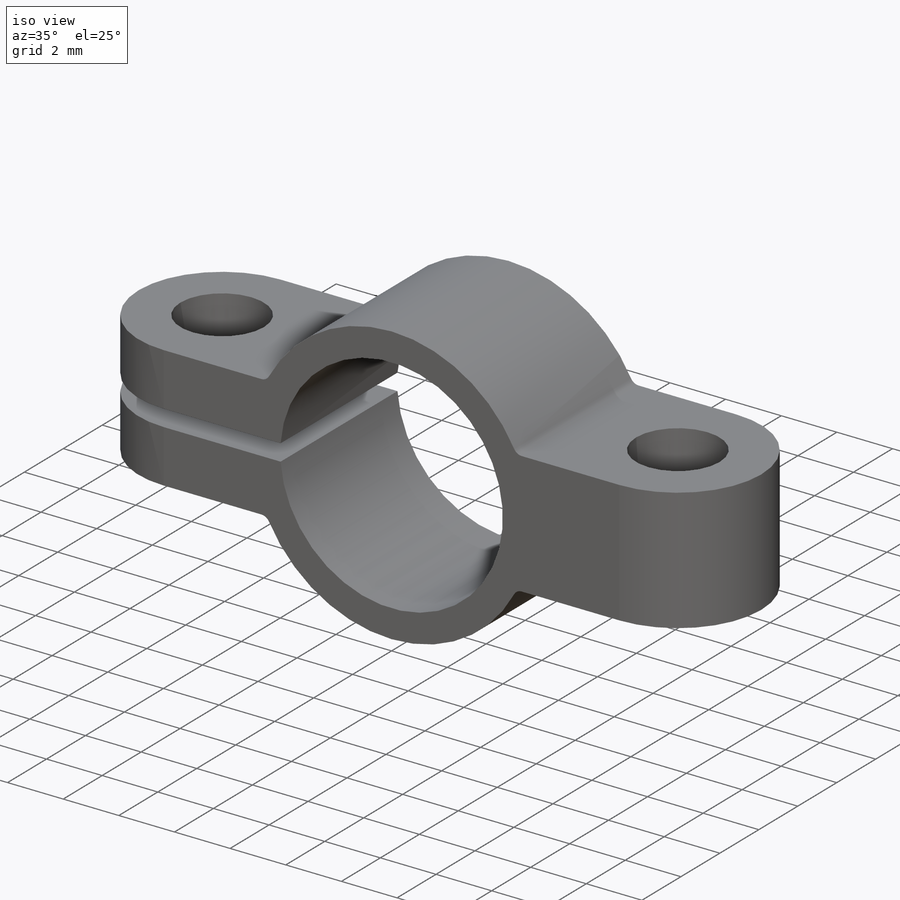
[diagram: iso view]
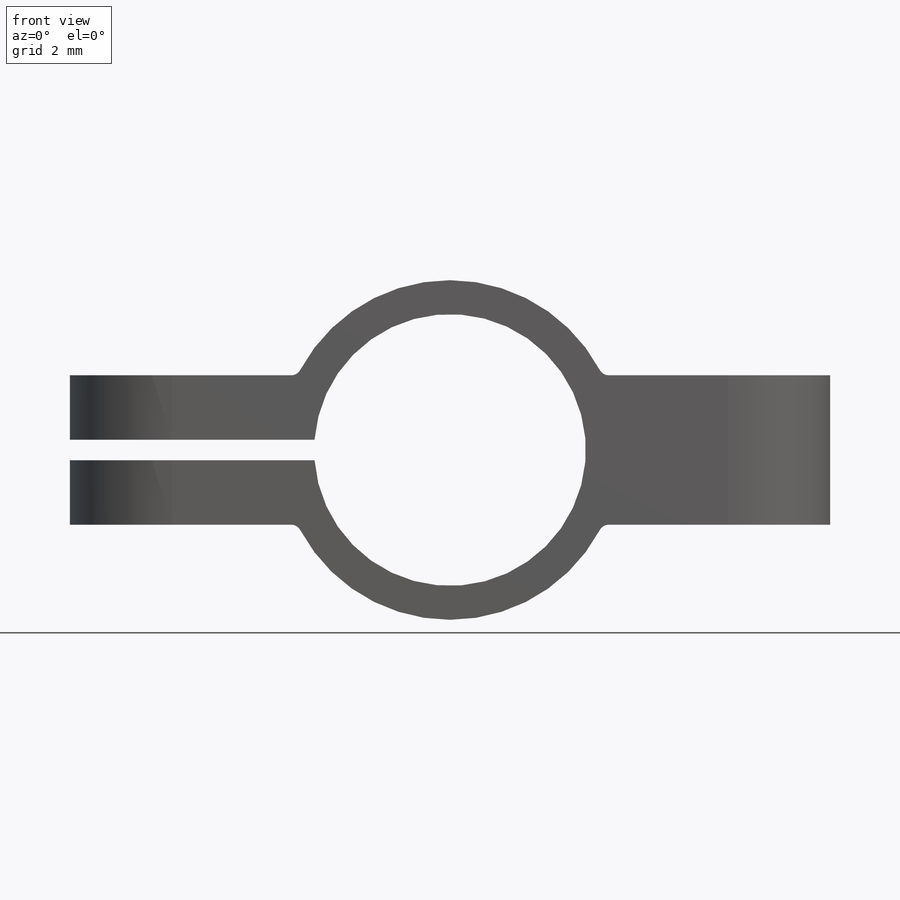
[diagram: front view]
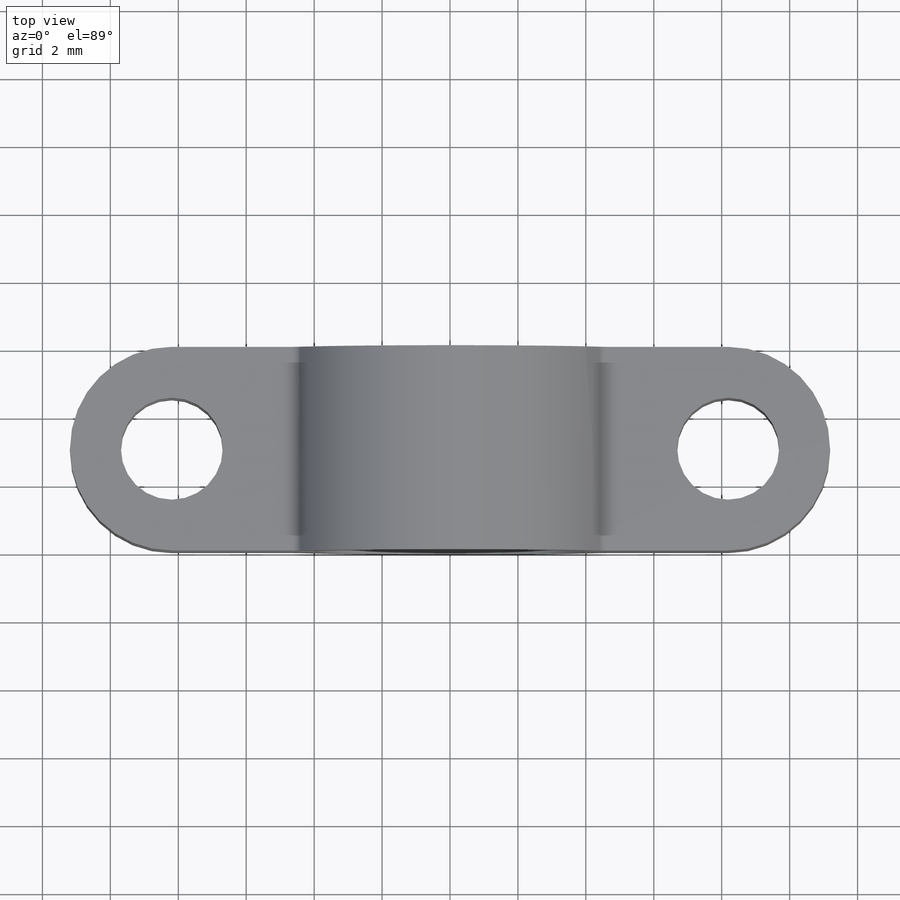
[diagram: top view]
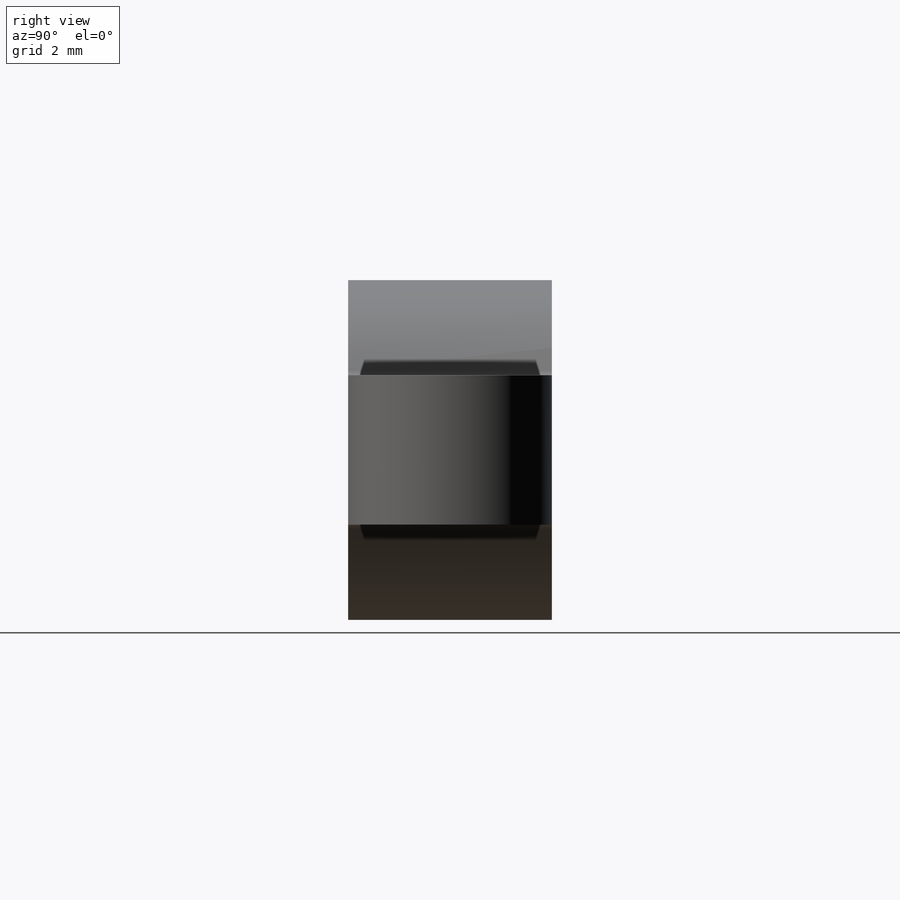
[diagram: right view]
SOLIDWORKS PART (.sldprt)
format: sldprt  version: not decoded by parser v0  size: 256,512 bytes
history: native  units: mm
features: plane x3, sketch x3, mirror x2, cut_extrude x2, material x1, extrude x1, fillet x1 (+10 scaffold rows collapsed)
feature tree (23):
  scaffold x10  (default folders/planes/origin — collapsed)
  material  "材质 <未指定>"
  plane  "前视基准面"
  plane  "上视基准面"
  plane  "右视基准面"
  sketch  "草图2"  dims[c1.D3=4.0mm c1.D2=4.0mm c2.D3=~7.615652mm c2.D1=1.7mm c2.D2=7.0mm c3.D3=1.0mm c3.D4=6.7mm c3.D1=2.2mm c3.D5=0.3mm]
  extrude  "凸台-拉伸1"  Depth=6mm
  mirror  "镜向2"
  sketch  "草图3"  dims[D1=0.0mm]
  cut_extrude  "切除-拉伸1"  [1 undecoded]
  mirror  "镜向1"
  sketch  "草图4"  dims[D2=3.0mm D4=3.0mm D1=0.0mm D3=0.0mm]
  cut_extrude  "切除-拉伸2"  [1 undecoded]
  fillet  "圆角1"  Radius=0.3mm
decode coverage: 5 of 9 modeling features carry decoded parameters
note: ~ marks probable driven/reference dimensions
note: 2 parameter values undecoded
note: suppression state not decoded; provenance and decode notes live in map.json
